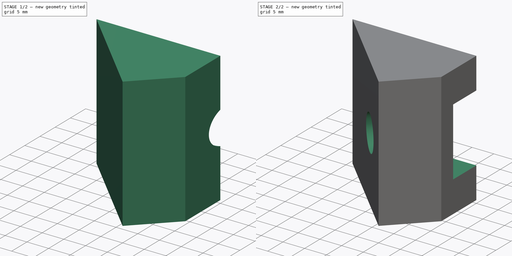
[diagram: build sequence overview — one tinted view per stage of 2, left to right]
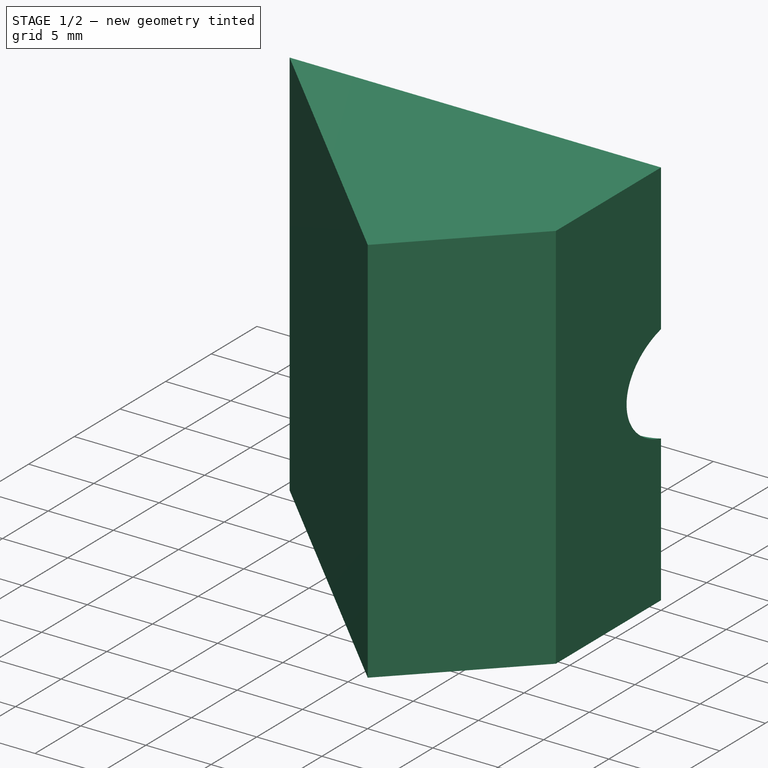
[diagram: stage 1 of 2 — iso view after this stage's code; geometry added in this stage tinted green]
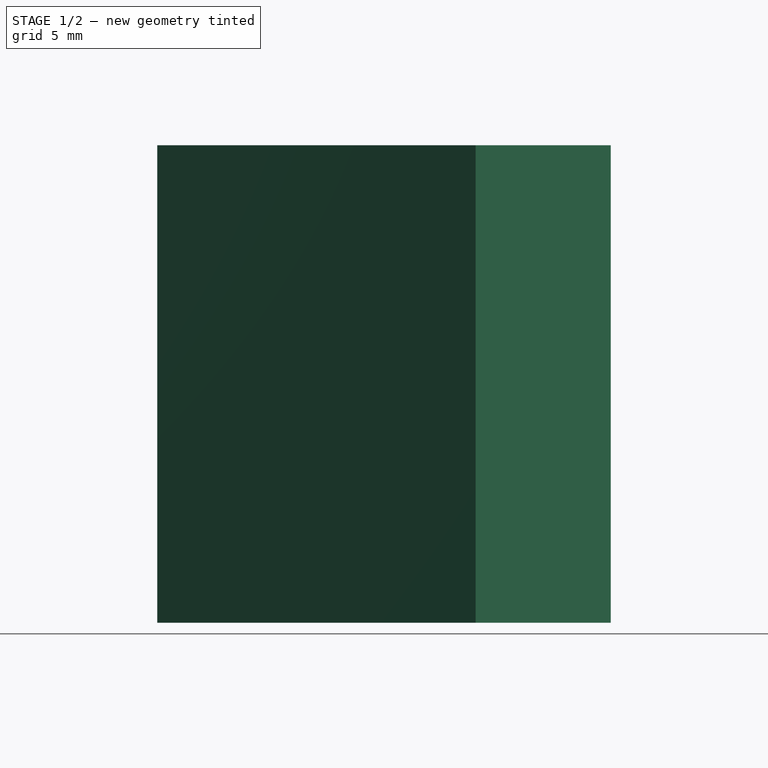
[diagram: stage 1 of 2 — front view after this stage's code; geometry added in this stage tinted green]
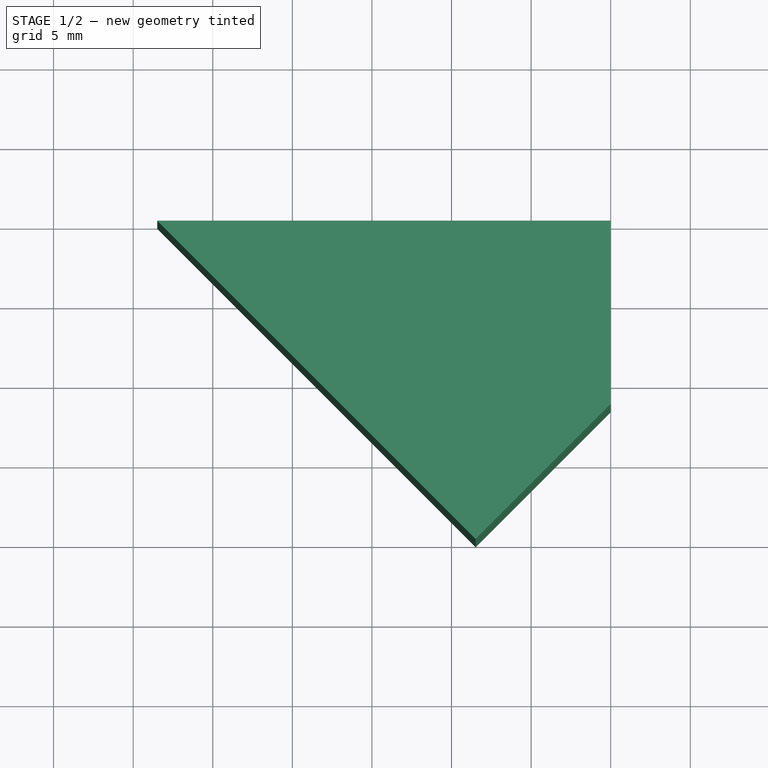
[diagram: stage 1 of 2 — top view after this stage's code; geometry added in this stage tinted green]
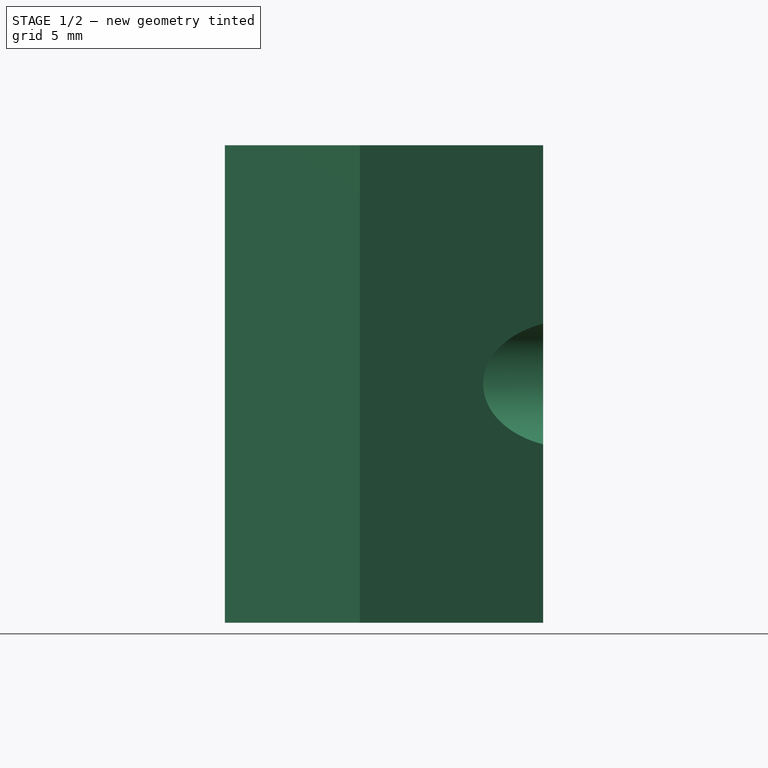
[diagram: stage 1 of 2 — right view after this stage's code; geometry added in this stage tinted green]
FCSTD DOCUMENT  (FreeCAD 0.20R29410 (Git))
Label: TrainConnectorHalfReadyWIthMountings
License: All rights reserved
LicenseURL: http://en.wikipedia.org/wiki/All_rights_reserved
objects: Sketcher::SketchObject×4, PartDesign::Plane×2, PartDesign::Hole×2, PartDesign::Pad×1, PartDesign::Point×1, PartDesign::Line×1, PartDesign::Pocket×1, PartDesign::Body×1
note: 17 computed .brp shape members not serialized (recipe doc carries the construction recipe); baked Part::Feature solids carry a one-line shape summary decoded from their .brp

FEATURE [Sketcher::SketchObject] Sketch
  FullyConstrained = false
  MapMode = 5
  Support = -> [XY_Plane001]
  sketch-geometry (16):
    g0: LineSegment StartX=-8.48528 StartY=0 StartZ=0 EndX=0 EndY=8.48528 EndZ=0
    g1: LineSegment StartX=0 StartY=8.48528 StartZ=0 EndX=0 EndY=20 EndZ=0
    g2: LineSegment StartX=0 StartY=20 StartZ=0 EndX=-28.4853 EndY=20 EndZ=0
    g3: LineSegment StartX=-28.4853 StartY=20 StartZ=0 EndX=-8.48528 EndY=0 EndZ=0
    g4: LineSegment StartX=-24.9112 StartY=-18.5473 StartZ=0 EndX=-3.6e-15 EndY=6.36396 EndZ=0
    g5: LineSegment StartX=-8.48528 StartY=0 StartZ=0 EndX=-7.42462 EndY=-1.06066 EndZ=0
    g6: GeomPoint X=-15.2028 Y=6.71751 Z=0
    g7: LineSegment StartX=-15.2028 StartY=6.71751 StartZ=0 EndX=7.77246 EndY=29.6928 EndZ=0
    g8: LineSegment StartX=-18.0489 StartY=9.56362 StartZ=0 EndX=1.86323 EndY=29.4758 EndZ=0
    g9: LineSegment StartX=-12.3567 StartY=3.87141 StartZ=0 EndX=6.87214 EndY=23.1002 EndZ=0
    g10: LineSegment StartX=-15.2028 StartY=6.71751 StartZ=0 EndX=-15.9099 EndY=6.01041 EndZ=0
    g11: LineSegment StartX=-23.6881 StartY=13.7886 StartZ=0 EndX=-8.13173 EndY=-1.76777 EndZ=0
    g12: LineSegment StartX=-8.13173 StartY=-1.76777 StartZ=0 EndX=-13.0815 EndY=-6.71751 EndZ=0
    g13: LineSegment StartX=-13.0815 StartY=-6.71751 StartZ=0 EndX=-28.6378 EndY=8.83883 EndZ=0
    g14: LineSegment StartX=-28.6378 StartY=8.83883 StartZ=0 EndX=-23.6881 EndY=13.7886 EndZ=0
    g15: GeomPoint X=-10.6066 Y=-4.24264 Z=0
  constraints (43):
    c: PointOnObject(g0,g-1)
    c: PointOnObject(g0,g-2)
    c: Angle(g0,g-2) = 0.785398
    c: Coincident(g1,g0)
    c: PointOnObject(g1,g-2)
    c: Coincident(g2,g1)
    c: Horizontal(g2)
    c: Coincident(g3,g2)
    c: Coincident(g3,g0)
    c: Perpendicular(g0,g3)
    c: DistanceY(g-1,g1) = 20
    c: Parallel(g4,g0)
    c: PointOnObject(g4,g-2)
    c: Coincident(g5,g0)
    c: PointOnObject(g5,g4)
    c: Perpendicular(g4,g5)
    c: Distance(g0,g5) = 1.5
    c: PointOnObject(g6,g3)
    c: Coincident(g7,g6)
    c: Perpendicular(g3,g7)
    c: Distance(g5,g6) = 11
    c: PointOnObject(g8,g3)
    c: Parallel(g8,g7)
    c: Parallel(g8,g9)
    c: Symmetric(g8,g9,g7)
    c: Distance(g9,g8) = 8.05
    c: Coincident(g10,g6)
    c: Parallel(g10,g7)
    c: Distance(g10,g6) = 1
    c: PointOnObject(g11,g4)
    c: Coincident(g11,g12)
    c: PointOnObject(g12,g4)
    c: Coincident(g12,g13)
    c: Coincident(g13,g14)
    c: Coincident(g14,g11)
    c: Perpendicular(g14,g11)
    c: Perpendicular(g13,g14)
    c: Perpendicular(g13,g12)
    c: Distance(g11,g13) = 7
    c: Distance(g12,g13) = 22
    c: PointOnObject(g10,g11)
    c: Symmetric(g11,g12,g15)
    c: Distance(g4,g15) = 15
FEATURE [PartDesign::Pad] Pad
  Direction = (0,0,1)
  Length = 30
  Length2 = 10
  Profile = -> Sketch
  ReferenceAxis = -> Sketch [N_Axis]
  Type = 0
FEATURE [PartDesign::Plane] DatumPlane
  AttachmentOffset = pos=(0,0,-4) rot=(0,0,1;0rad)
  Length = 85.8631
  MapMode = 5
  Placement = pos=(-1.41421,-1.41421,0) rot=(0.862856,-0.357407,-0.357407;1.71777rad)
  ResizeMode = 0
  Support = -> [Pad]
  Width = 67.688
FEATURE [PartDesign::Point] DatumPoint
  AttacherType = Attacher::AttachEnginePoint
  MapMode = 37
  Placement = pos=(-8.48528,0,15) rot=(0,0,1;0rad)
  Support = -> [Pad]
FEATURE [PartDesign::Line] DatumLine
  AttacherType = Attacher::AttachEngineLine
  Length = 20
  MapMode = 29
  Placement = pos=(-8.48528,0,0) rot=(0,0,1;0rad)
  ResizeMode = 0
  Support = -> [Pad]
FEATURE [Sketcher::SketchObject] Sketch001
  ExternalGeometry = -> [DatumLine,Pad]
  FullyConstrained = true
  MapMode = 5
  Placement = pos=(-1.41421,-1.41421,0) rot=(0.862856,-0.357407,-0.357407;1.71777rad)
  Support = -> [DatumPlane]
  sketch-geometry (3):
    g0: GeomPoint X=-6 Y=15 Z=0
    g1: Circle CenterX=-15.5 CenterY=15 CenterZ=0 NormalX=0 NormalY=0 NormalZ=1 AngleXU=0 Radius=4.025
    g2: LineSegment StartX=-15.5 StartY=15 StartZ=0 EndX=-6 EndY=15 EndZ=0
  constraints (6):
    c: Symmetric(g-4,g-4,g0)
    c: Coincident(g2,g1)
    c: Coincident(g2,g0)
    c: Horizontal(g2)
    c: Distance(g2) = 9.5
    c: Diameter(g1) = 8.05
FEATURE [PartDesign::Hole] Hole
  BaseFeature = -> Pad
  CustomThreadClearance = 0
  Depth = 92.8192
  DepthType = 1
  Diameter = 8.05
  DrillForDepth = false
  DrillPoint = 1
  DrillPointAngle = 118
  HoleCutCountersinkAngle = 90
  HoleCutCustomValues = false
  HoleCutDepth = 0
  HoleCutDiameter = 6.1
  HoleCutType = 0
  ModelThread = false
  Profile = -> Sketch001
  Tapered = false
  TaperedAngle = 90
  ThreadClass = 0
  ThreadDepth = 92.8192
  ThreadDepthType = 0
  ThreadDirection = 0
  ThreadFit = 0
  ThreadSize = 0
  ThreadType = 0
  Threaded = false
  UseCustomThreadClearance = false
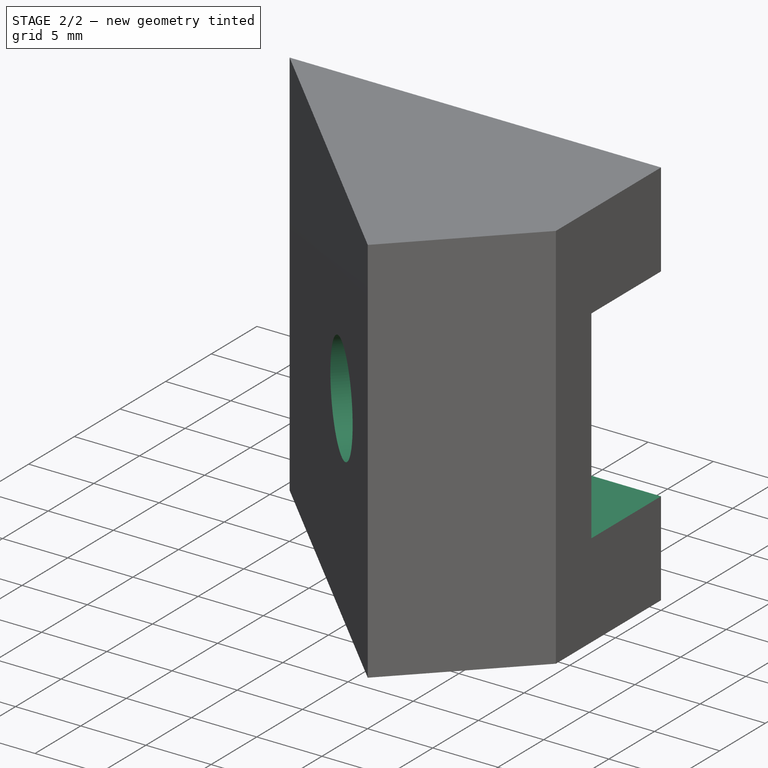
[diagram: stage 2 of 2 — iso view after this stage's code; geometry added in this stage tinted green]
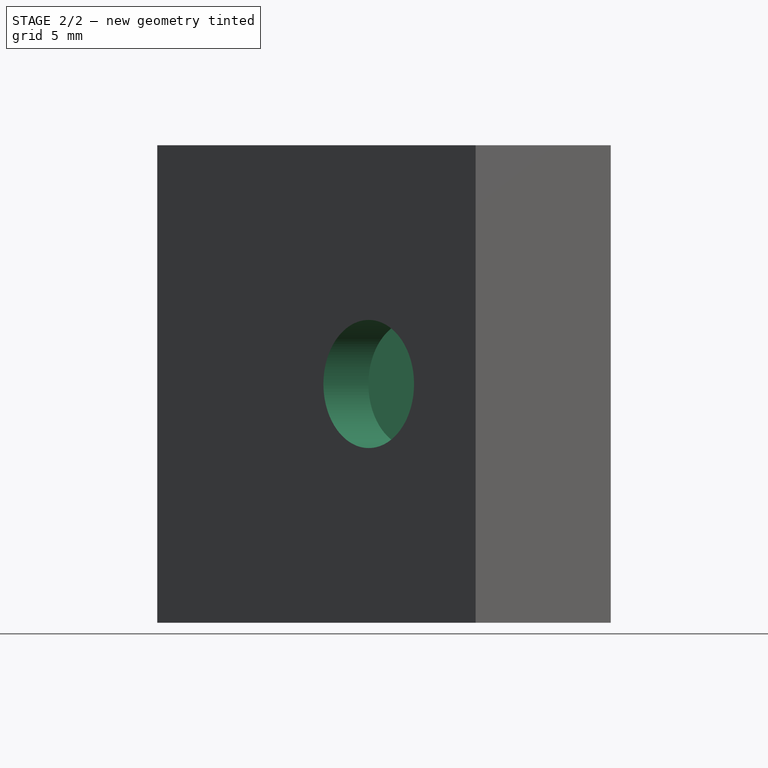
[diagram: stage 2 of 2 — front view after this stage's code; geometry added in this stage tinted green]
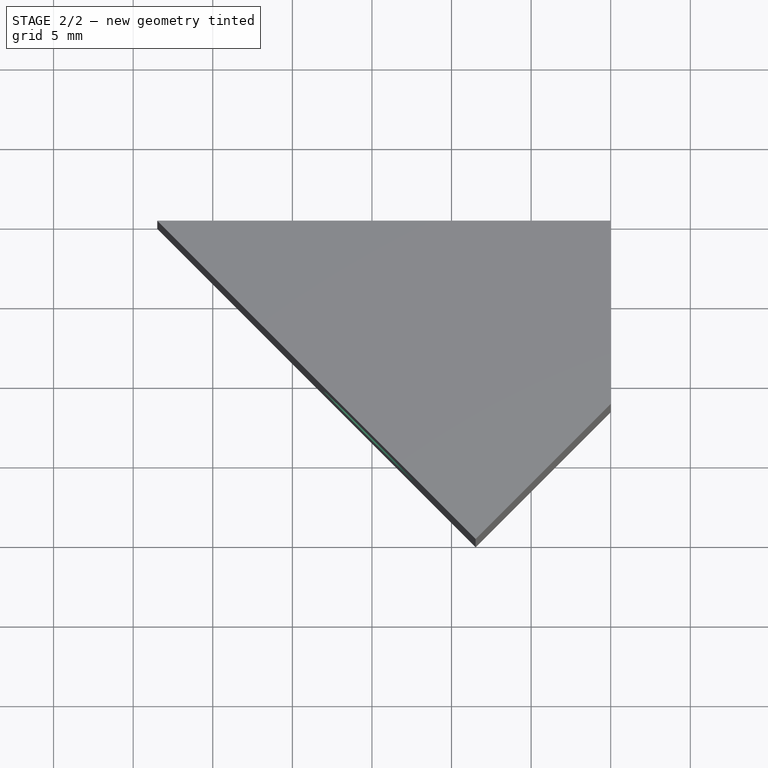
[diagram: stage 2 of 2 — top view after this stage's code; geometry added in this stage tinted green]
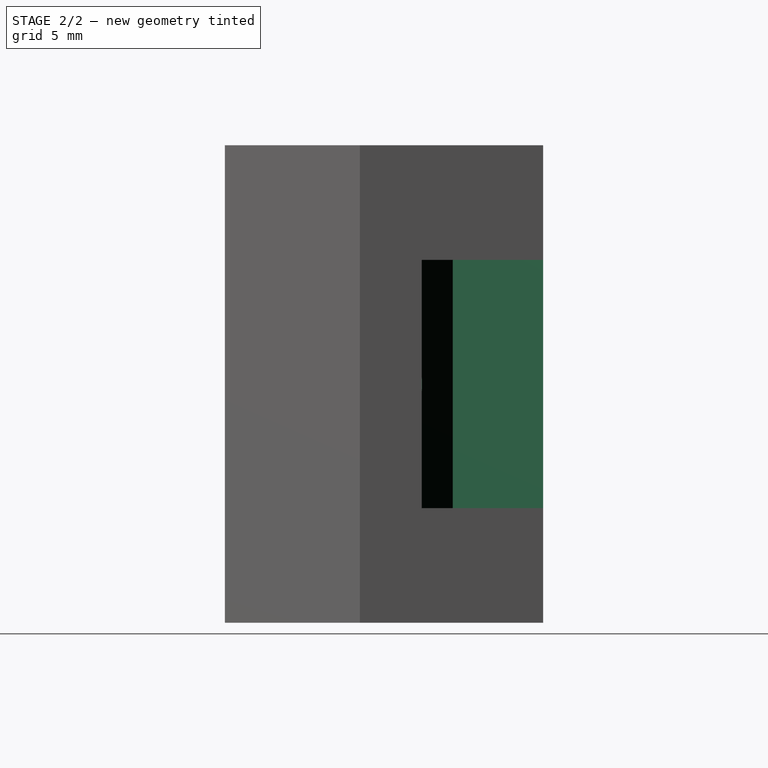
[diagram: stage 2 of 2 — right view after this stage's code; geometry added in this stage tinted green]
FEATURE [Sketcher::SketchObject] Sketch002
  ExternalGeometry = -> [DatumLine,DatumPoint,Hole]
  FullyConstrained = true
  MapMode = 5
  Placement = pos=(-1.41421,-1.41421,0) rot=(0.862856,-0.357407,-0.357407;1.71777rad)
  Support = -> [DatumPlane]
  sketch-geometry (11):
    g0: LineSegment StartX=-8.75 StartY=7.20577 StartZ=0 EndX=-8.75 EndY=22.7942 EndZ=0
    g1: LineSegment StartX=-8.75 StartY=22.7942 StartZ=0 EndX=-22.25 EndY=22.7942 EndZ=0
    g2: LineSegment StartX=-22.25 StartY=22.7942 StartZ=0 EndX=-22.25 EndY=7.20577 EndZ=0
    g3: LineSegment StartX=-22.25 StartY=7.20577 StartZ=0 EndX=-8.75 EndY=7.20577 EndZ=0
    g4: LineSegment StartX=-8.75 StartY=18.8971 StartZ=0 EndX=-15.5 EndY=22.7942 EndZ=0
    g5: LineSegment StartX=-15.5 StartY=22.7942 StartZ=0 EndX=-22.25 EndY=18.8971 EndZ=0
    g6: LineSegment StartX=-22.25 StartY=18.8971 StartZ=0 EndX=-22.25 EndY=11.1029 EndZ=0
    g7: LineSegment StartX=-22.25 StartY=11.1029 StartZ=0 EndX=-15.5 EndY=7.20577 EndZ=0
    g8: LineSegment StartX=-15.5 StartY=7.20577 StartZ=0 EndX=-8.75 EndY=11.1029 EndZ=0
    g9: LineSegment StartX=-8.75 StartY=11.1029 StartZ=0 EndX=-8.75 EndY=18.8971 EndZ=0
    g10: Circle CenterX=-15.5 CenterY=15 CenterZ=0 NormalX=0 NormalY=0 NormalZ=1 AngleXU=0 Radius=7.79423
  constraints (28):
    c: Vertical(g0)
    c: Coincident(g0,g1)
    c: Horizontal(g1)
    c: Coincident(g1,g2)
    c: Vertical(g2)
    c: Coincident(g2,g3)
    c: Coincident(g3,g0)
    c: Horizontal(g3)
    c: Symmetric(g2,g0,g-5)
    c: DistanceX(g1,g1) = 13.5
    c: Coincident(g4,g5)
    c: Coincident(g5,g6)
    c: Coincident(g6,g7)
    c: Coincident(g7,g8)
    c: Coincident(g8,g9)
    c: Coincident(g9,g4)
    c: Equal(g4, g5-g9) x5
    c: PointOnObject(g4,g10)
    c: PointOnObject(g5,g10)
    c: PointOnObject(g6,g10)
    c: PointOnObject(g7,g10)
    c: PointOnObject(g8,g10)
    c: PointOnObject(g9,g10)
    c: Coincident(g10,g-5)
    c: PointOnObject(g9,g0)
    c: PointOnObject(g4,g1)
    c: DistanceY(g2,g2) = 15.5885
    c: Vertical(g9)
FEATURE [PartDesign::Pocket] Pocket
  BaseFeature = -> Hole
  Direction = (0.707107,0.707107,0)
  Length = 17
  Length2 = 5
  Profile = -> Sketch002
  ReferenceAxis = -> Sketch002 [N_Axis]
  Type = 0
FEATURE [PartDesign::Hole] Hole001
  BaseFeature = -> Pocket
  CustomThreadClearance = 0
  Depth = 92.8192
  DepthType = 1
  Diameter = 8.05
  DrillForDepth = false
  DrillPoint = 1
  DrillPointAngle = 118
  HoleCutCountersinkAngle = 90
  HoleCutCustomValues = false
  HoleCutDepth = 0
  HoleCutDiameter = 6.1
  HoleCutType = 0
  ModelThread = false
  Profile = -> Pocket [Edge28]
  Tapered = false
  TaperedAngle = 90
  ThreadClass = 0
  ThreadDepth = 92.8192
  ThreadDepthType = 0
  ThreadDirection = 0
  ThreadFit = 0
  ThreadSize = 0
  ThreadType = 0
  Threaded = false
  UseCustomThreadClearance = false
FEATURE [PartDesign::Plane] DatumPlane001
  Length = 64.3328
  MapMode = 5
  Placement = pos=(0,20,0) rot=(0,0.707107,0.707107;3.14159rad)
  ResizeMode = 0
  Support = -> [Hole001]
  Width = 65.8475
FEATURE [Sketcher::SketchObject] Sketch003
  ExternalGeometry = -> [Hole001]
  FullyConstrained = true
  MapMode = 5
  Placement = pos=(0,20,0) rot=(0,0.707107,0.707107;3.14159rad)
  Support = -> [DatumPlane001]
  sketch-geometry (8):
    g0: ArcOfCircle CenterX=0 CenterY=-8 CenterZ=0 NormalX=0 NormalY=0 NormalZ=1 AngleXU=0 Radius=12 StartAngle=4.71239 EndAngle=6.53587
    g1: ArcOfCircle CenterX=15.4919 CenterY=-4 CenterZ=0 NormalX=0 NormalY=0 NormalZ=1 AngleXU=0 Radius=4 StartAngle=1.5708 EndAngle=3.39427
    g2: LineSegment StartX=15.4919 StartY=1 StartZ=0 EndX=15.4919 EndY=0 EndZ=0
    g3: LineSegment StartX=-2.2e-15 StartY=-12.02 StartZ=0 EndX=-2.2e-15 EndY=-20 EndZ=0
    g4: ArcOfCircle CenterX=0 CenterY=-8 CenterZ=0 NormalX=0 NormalY=0 NormalZ=1 AngleXU=0 Radius=4.02 StartAngle=4.71239 EndAngle=7.85398
    g5: LineSegment StartX=1.2e-15 StartY=-3.98 StartZ=0 EndX=0 EndY=0 EndZ=0
    g6: LineSegment StartX=15.4919 StartY=1 StartZ=0 EndX=0 EndY=1 EndZ=0
    g7: LineSegment StartX=0 StartY=1 StartZ=0 EndX=0 EndY=0 EndZ=0
  constraints (23):
    c: Tangent(g1,g0) = 1.5708
    c: Tangent(g1,g-1) = 1.5708
    c: Coincident(g2,g1)
    c: Vertical(g2)
    c: PointOnObject(g4,g-2)
    c: Vertical(g3)
    c: PointOnObject(g3,g-2)
    c: Coincident(g0,g3)
    c: Coincident(g4,g0)
    c: Coincident(g4,g3)
    c: Coincident(g5,g4)
    c: Coincident(g5,g-1)
    c: PointOnObject(g0,g-2)
    c: Radius(g4) = 4.02
    c: DistanceY(g0,g5) = 8
    c: Radius(g0) = 12
    c: Radius(g1) = 4
    c: Coincident(g2,g6)
    c: PointOnObject(g6,g-2)
    c: Horizontal(g6)
    c: Coincident(g6,g7)
    c: Coincident(g7,g5)
    c: DistanceY(g2,g2) = 1
FEATURE [PartDesign::Body] Body001  label="TrainConnectorBulk"
  Group = -> [Sketch,Pad,DatumPlane,Sketch001,DatumPoint,DatumLine,Hole,Sketch002,Pocket,Hole001,DatumPlane001,Sketch003]
  Origin = -> Origin001
  Tip = -> Hole001
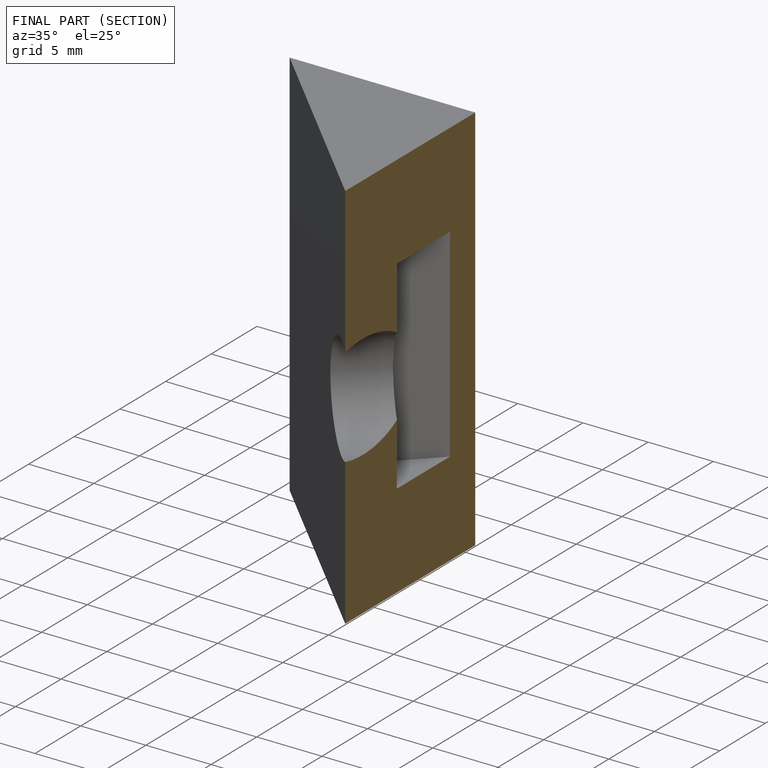
[diagram: finished part — half-section view (interior)]
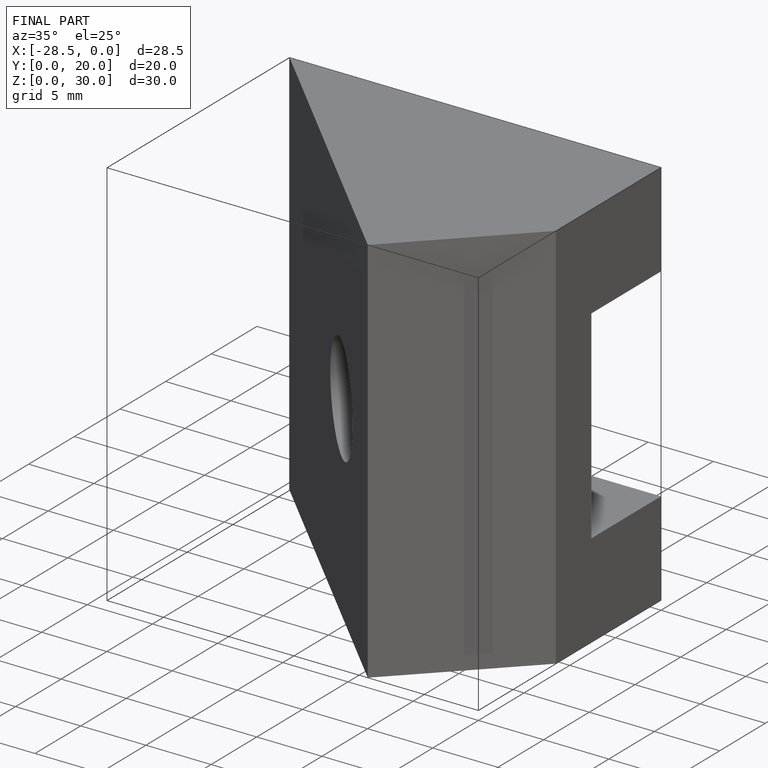
[diagram: finished part — iso view with bounding-box wireframe]
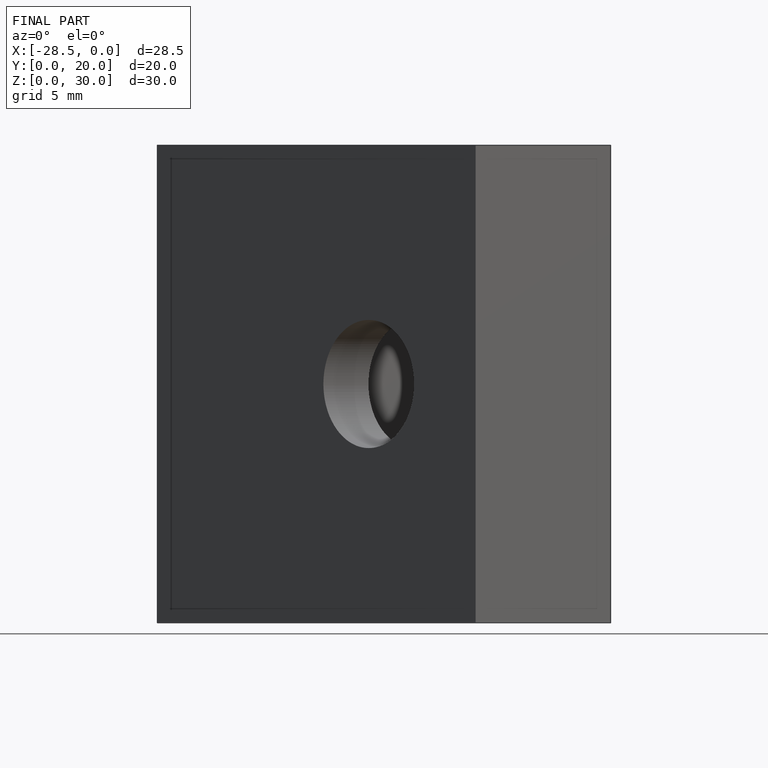
[diagram: finished part — front view with bounding-box wireframe]
